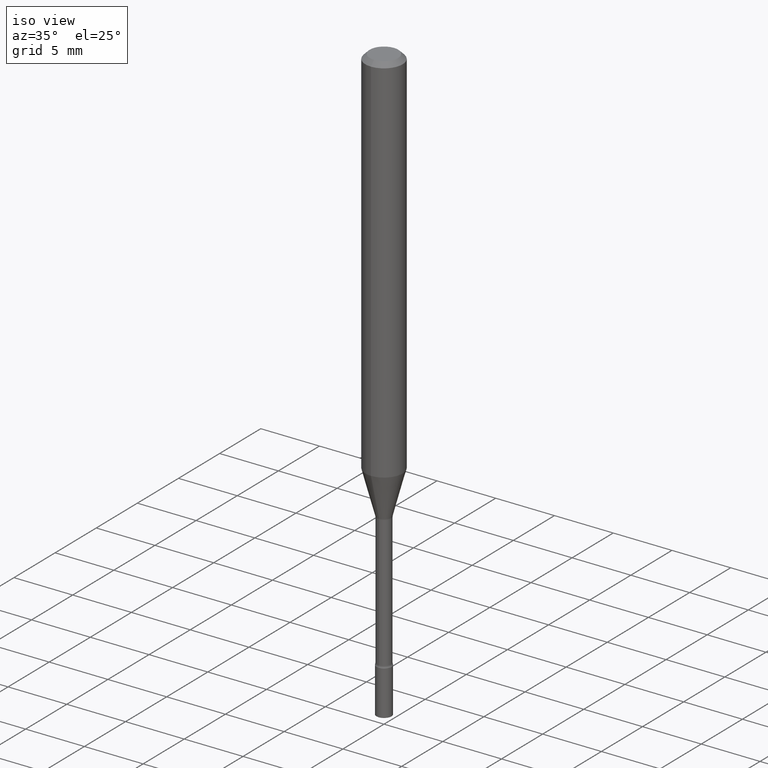
[diagram: clean part render]
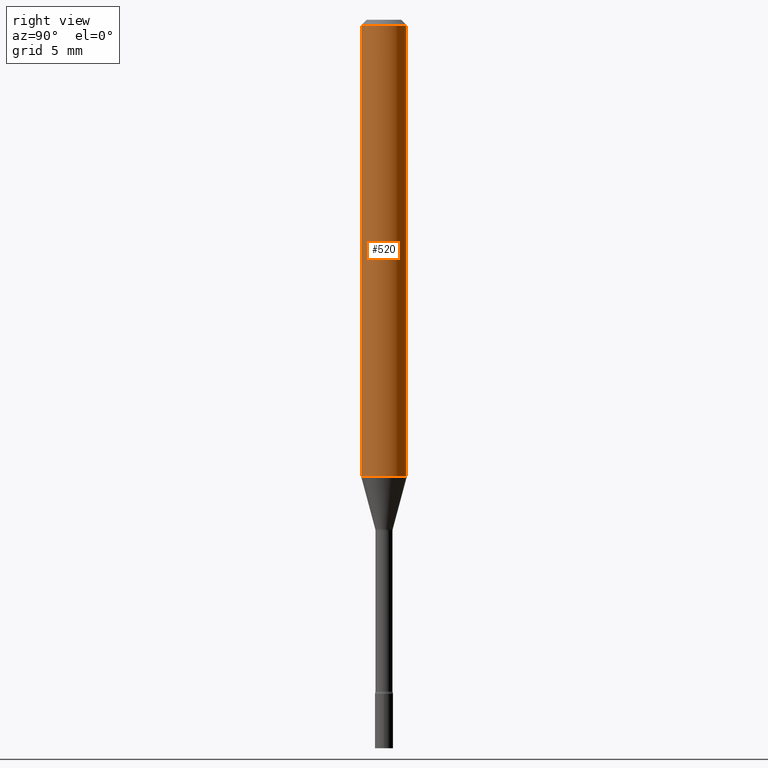
[diagram: tour spotlight — one face highlighted and labeled with its STEP entity id]
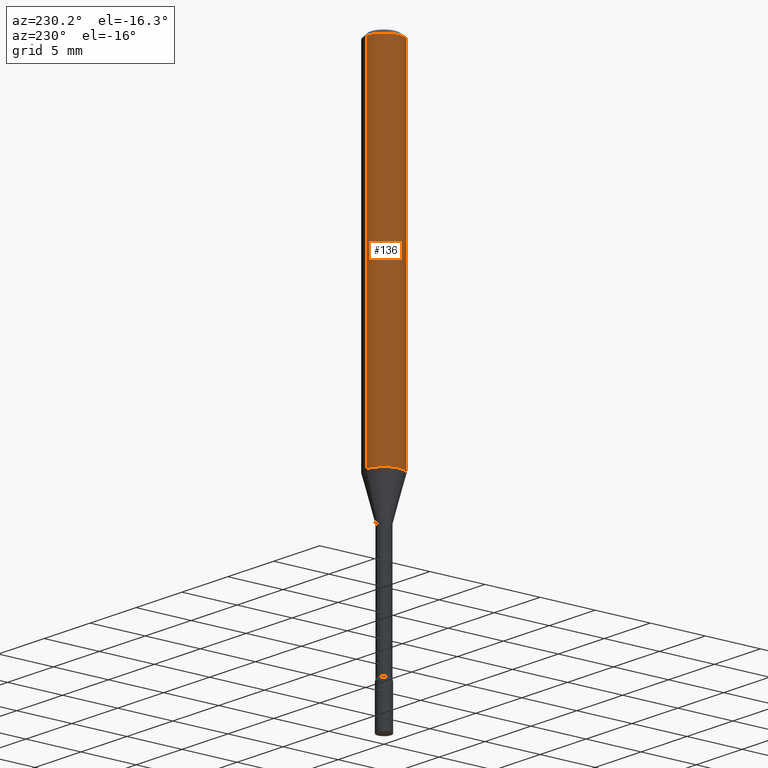
[diagram: tour spotlight — one face highlighted and labeled with its STEP entity id]
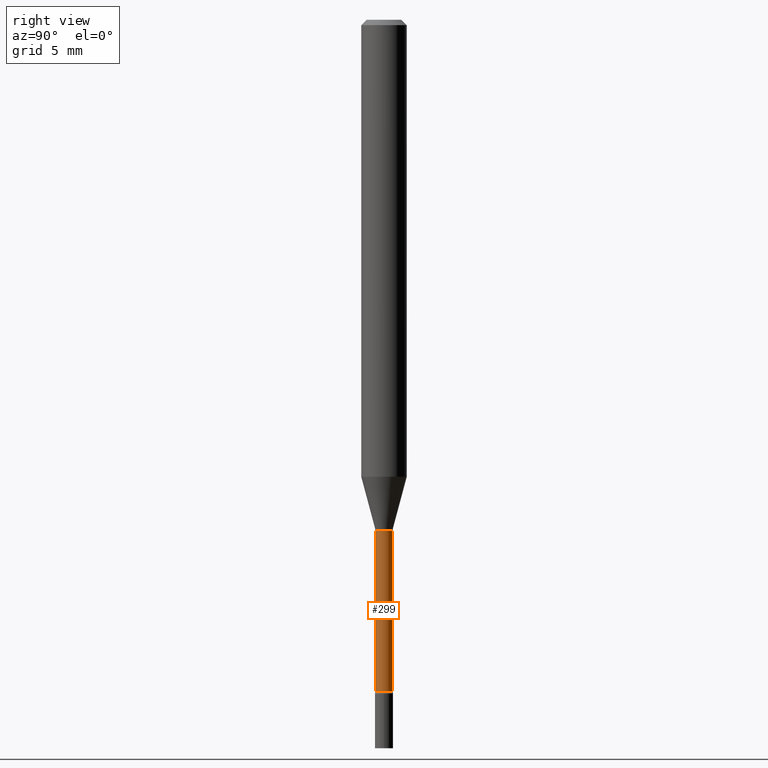
[diagram: tour spotlight — one face highlighted and labeled with its STEP entity id]
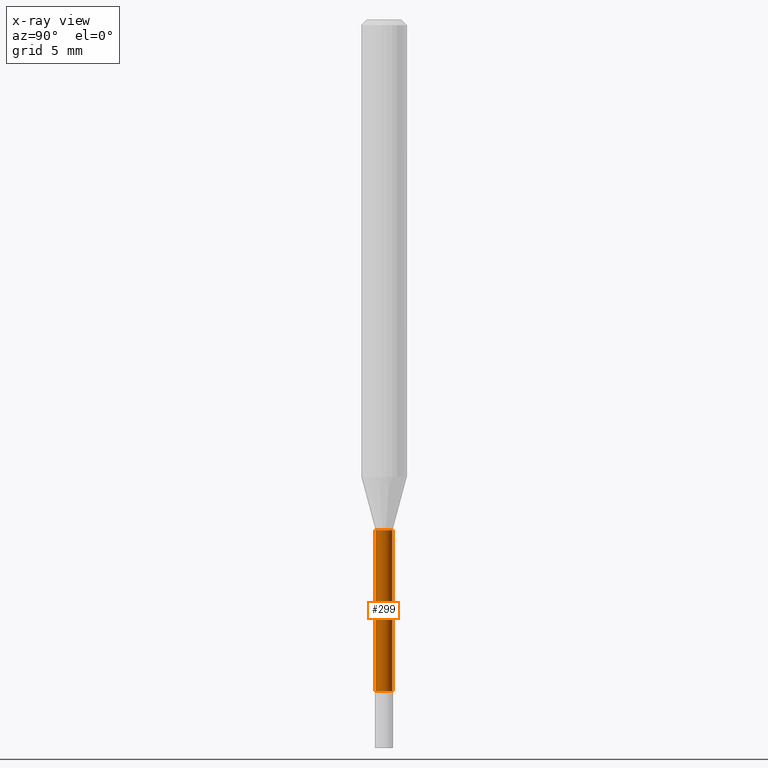
[diagram: x-ray of the same camera — body ghosted, this tour face saturated]
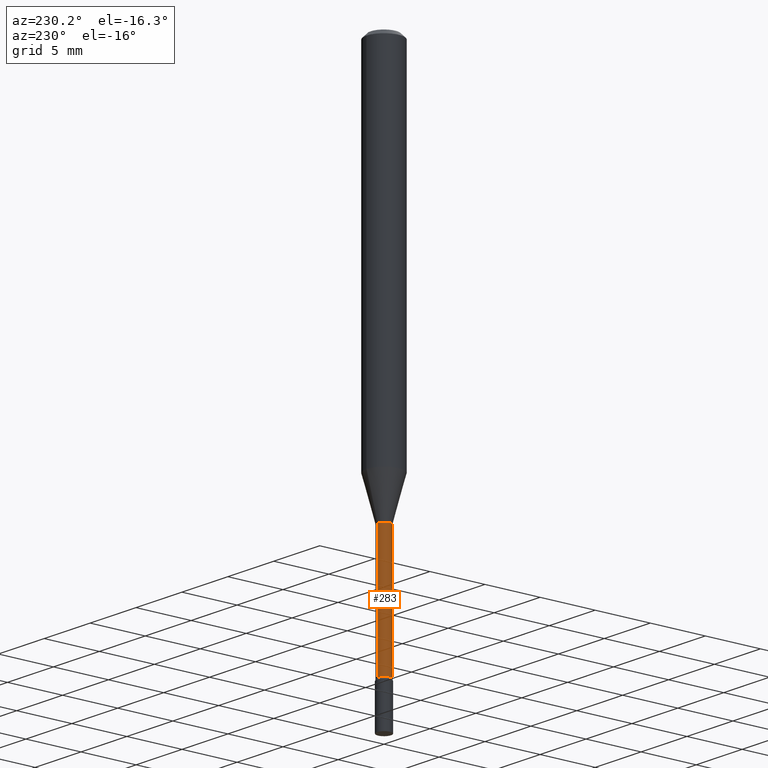
[diagram: tour spotlight — one face highlighted and labeled with its STEP entity id]
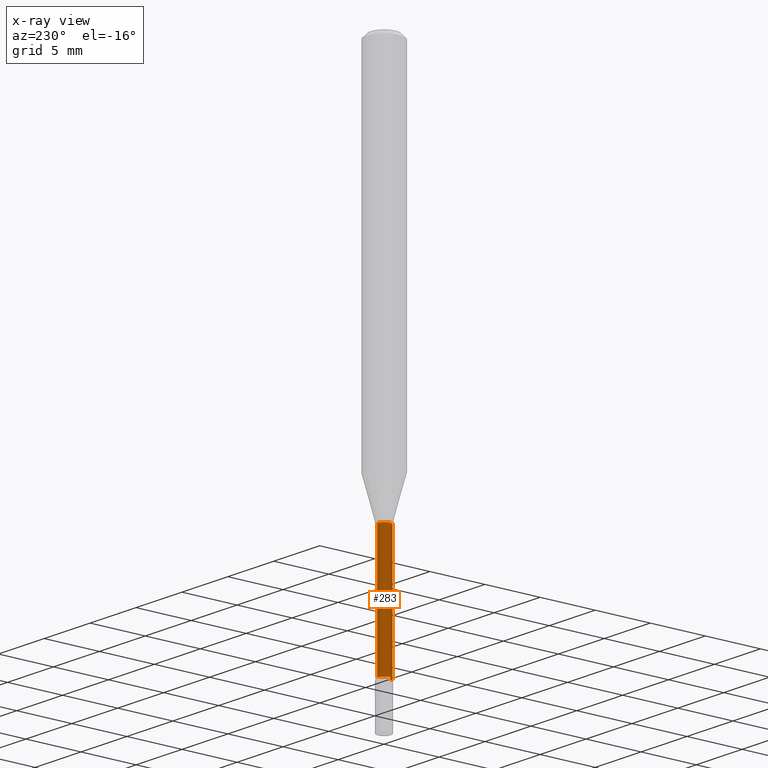
[diagram: x-ray of the same camera — body ghosted, this tour face saturated]
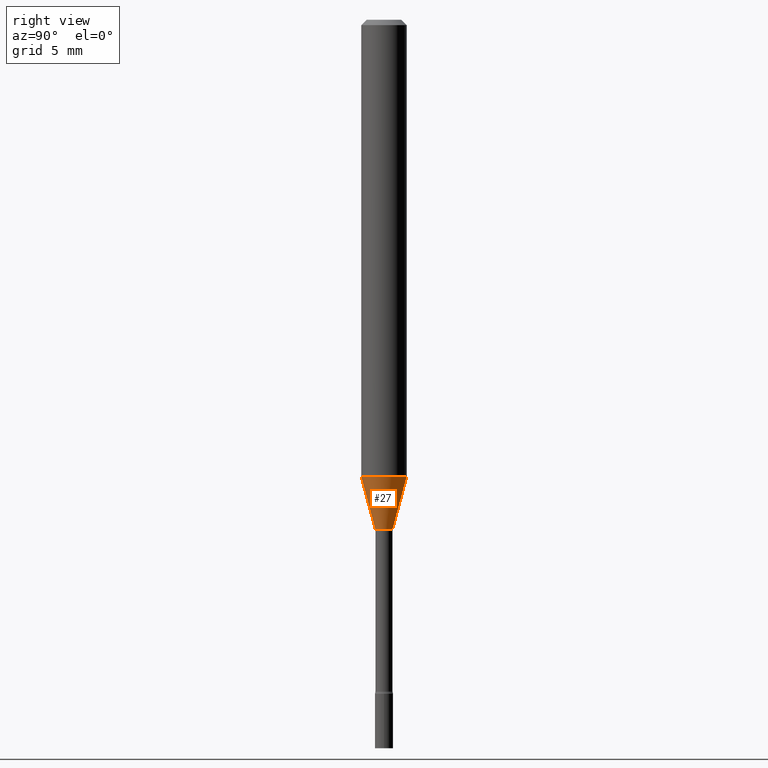
[diagram: tour spotlight — one face highlighted and labeled with its STEP entity id]
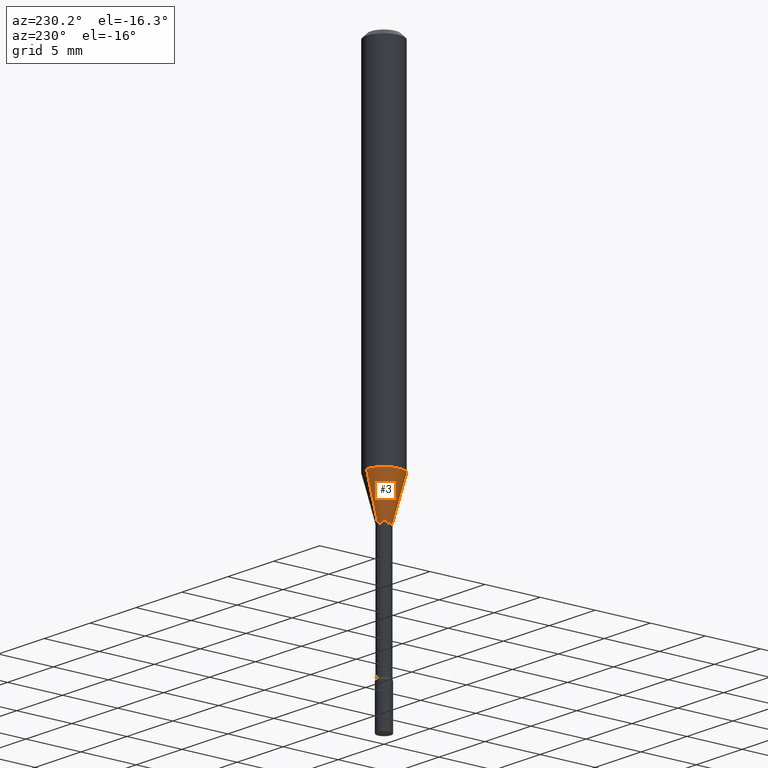
[diagram: tour spotlight — one face highlighted and labeled with its STEP entity id]
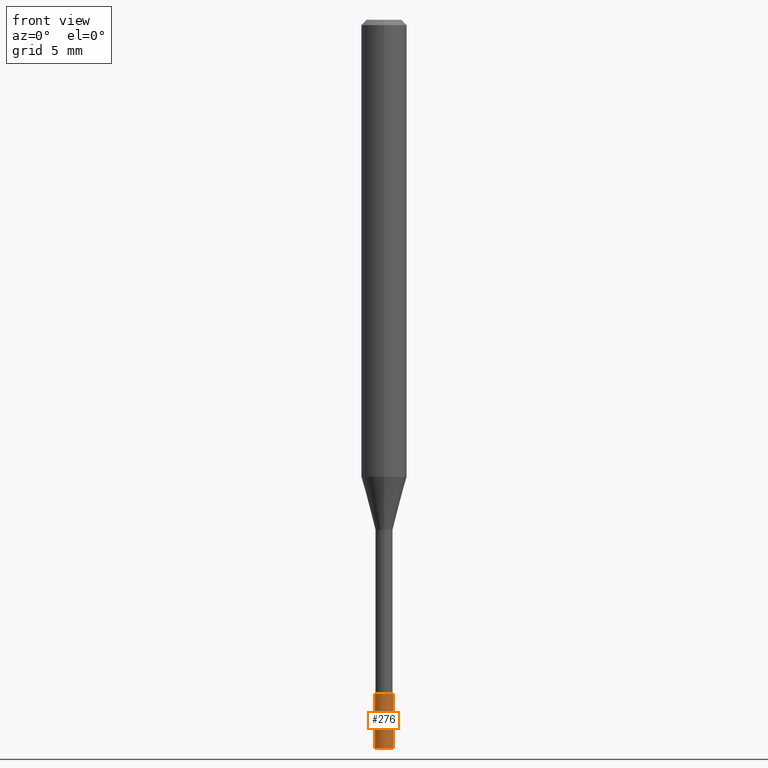
[diagram: tour spotlight — one face highlighted and labeled with its STEP entity id]
A machine part: a face-by-face anatomy tour. The part has 18 B-rep faces; the first image is the clean iso view, then the 7 largest visible faces are spotlighted one at a time (largest first), each with its STEP entity span.

Face 1 — right view, entity #520. In plain terms, the highlighted cylindrical surface (edge-blend (fillet) strip) has radius 1.5875 mm, axis along (-0, 0, 1).
Definition (entity closure, byte-faithful):
#10 = EDGE_CURVE ( 'NONE', #465, #247, #235, .T. ) ;
#15 = CIRCLE ( 'NONE', #324, 0.06250000000000000000 ) ;
#21 = AXIS2_PLACEMENT_3D ( 'NONE', #240, #403, #184 ) ;
#24 = CARTESIAN_POINT ( 'NONE',  ( 3.668272747996743464E-31, -5.237122424861178966E-17, -0.01500000000000003067 ) ) ;
#26 = CARTESIAN_POINT ( 'NONE',  ( 4.440892098500625669E-16, 0.06250000000000000000, -2.182134343692153054E-16 ) ) ;
#64 = VERTEX_POINT ( 'NONE', #358 ) ;
#66 = DIRECTION ( 'NONE',  ( -2.445515165331157393E-29, 3.491414949907445282E-15, 1.000000000000000000 ) ) ;
#67 = ORIENTED_EDGE ( 'NONE', *, *, #509, .T. ) ;
#77 = DIRECTION ( 'NONE',  ( -6.982962677686265922E-15, -1.000000000000000000, 4.370956789862821150E-15 ) ) ;
#113 = VERTEX_POINT ( 'NONE', #243 ) ;
#138 = DIRECTION ( 'NONE',  ( -6.982962677686265922E-15, -1.000000000000000000, 3.483106191921935554E-15 ) ) ;
#139 = ORIENTED_EDGE ( 'NONE', *, *, #10, .T. ) ;
#148 = EDGE_LOOP ( 'NONE', ( #67, #139, #264, #510 ) ) ;
#162 = VECTOR ( 'NONE', #362, 39.37007874015748143 ) ;
#169 = CIRCLE ( 'NONE', #250, 0.06250000000000000000 ) ;
#184 = DIRECTION ( 'NONE',  ( -6.982962677686265922E-15, -1.000000000000000000, 3.491414949907444887E-15 ) ) ;
#197 = VECTOR ( 'NONE', #224, 39.37007874015748143 ) ;
#198 = CARTESIAN_POINT ( 'NONE',  ( 3.067776544403474457E-29, -4.379805548519381130E-15, -1.254450018504814413 ) ) ;
#215 = EDGE_CURVE ( 'NONE', #113, #64, #342, .T. ) ;
#224 = DIRECTION ( 'NONE',  ( -2.445515165331157393E-29, 3.491414949907444887E-15, 1.000000000000000000 ) ) ;
#235 = LINE ( 'NONE', #26, #197 ) ;
#240 = CARTESIAN_POINT ( 'NONE',  ( 0.000000000000000000, 0.000000000000000000, 0.000000000000000000 ) ) ;
#243 = CARTESIAN_POINT ( 'NONE',  ( -4.364351673553610517E-16, -0.06250000000000439926, -1.254450018504814190 ) ) ;
#247 = VERTEX_POINT ( 'NONE', #368 ) ;
#250 = AXIS2_PLACEMENT_3D ( 'NONE', #198, #280, #77 ) ;
#264 = ORIENTED_EDGE ( 'NONE', *, *, #433, .F. ) ;
#280 = DIRECTION ( 'NONE',  ( -2.445515165331157393E-29, 3.491414949907445282E-15, 1.000000000000000000 ) ) ;
#298 = CARTESIAN_POINT ( 'NONE',  ( 4.440892098500930859E-16, 0.06249999999999559380, -1.254450018504814635 ) ) ;
#324 = AXIS2_PLACEMENT_3D ( 'NONE', #24, #66, #138 ) ;
#342 = LINE ( 'NONE', #511, #162 ) ;
#358 = CARTESIAN_POINT ( 'NONE',  ( -4.364351673553912750E-16, -0.06250000000000005551, -0.01499999999999981209 ) ) ;
#361 = FACE_OUTER_BOUND ( 'NONE', #148, .T. ) ;
#362 = DIRECTION ( 'NONE',  ( -2.445515165331157393E-29, 3.491414949907444887E-15, 1.000000000000000000 ) ) ;
#368 = CARTESIAN_POINT ( 'NONE',  ( 4.440892098500934804E-16, 0.06249999999999995143, -0.01500000000000024751 ) ) ;
#393 = CYLINDRICAL_SURFACE ( 'NONE', #21, 0.06250000000000000000 ) ;
#403 = DIRECTION ( 'NONE',  ( -2.445515165331157393E-29, 3.491414949907445282E-15, 1.000000000000000000 ) ) ;
#433 = EDGE_CURVE ( 'NONE', #64, #247, #15, .T. ) ;
#465 = VERTEX_POINT ( 'NONE', #298 ) ;
#509 = EDGE_CURVE ( 'NONE', #113, #465, #169, .T. ) ;
#510 = ORIENTED_EDGE ( 'NONE', *, *, #215, .F. ) ;
#511 = CARTESIAN_POINT ( 'NONE',  ( -4.364351673553916201E-16, -0.06250000000000000000, 2.182134343692153054E-16 ) ) ;
#520 = ADVANCED_FACE ( 'NONE', ( #361 ), #393, .T. ) ;

Face 2 — auxiliary view, entity #136. In plain terms, the highlighted cylindrical surface (edge-blend (fillet) strip) has radius 1.5875 mm, axis along (-0, 0, 1).
Definition (entity closure, byte-faithful):
#10 = EDGE_CURVE ( 'NONE', #465, #247, #235, .T. ) ;
#26 = CARTESIAN_POINT ( 'NONE',  ( 4.440892098500625669E-16, 0.06250000000000000000, -2.182134343692153054E-16 ) ) ;
#29 = EDGE_LOOP ( 'NONE', ( #144, #195, #46, #472 ) ) ;
#46 = ORIENTED_EDGE ( 'NONE', *, *, #215, .T. ) ;
#64 = VERTEX_POINT ( 'NONE', #358 ) ;
#65 = DIRECTION ( 'NONE',  ( -2.445515165331157393E-29, 3.491414949907445282E-15, 1.000000000000000000 ) ) ;
#83 = EDGE_CURVE ( 'NONE', #465, #113, #286, .T. ) ;
#95 = AXIS2_PLACEMENT_3D ( 'NONE', #363, #408, #161 ) ;
#113 = VERTEX_POINT ( 'NONE', #243 ) ;
#117 = DIRECTION ( 'NONE',  ( -6.982962677686265922E-15, -1.000000000000000000, 3.491414949907444887E-15 ) ) ;
#118 = CYLINDRICAL_SURFACE ( 'NONE', #122, 0.06250000000000000000 ) ;
#122 = AXIS2_PLACEMENT_3D ( 'NONE', #479, #248, #117 ) ;
#136 = ADVANCED_FACE ( 'NONE', ( #448 ), #118, .T. ) ;
#144 = ORIENTED_EDGE ( 'NONE', *, *, #10, .F. ) ;
#161 = DIRECTION ( 'NONE',  ( -6.982962677686265922E-15, -1.000000000000000000, 3.483106191921935554E-15 ) ) ;
#162 = VECTOR ( 'NONE', #362, 39.37007874015748143 ) ;
#183 = EDGE_CURVE ( 'NONE', #247, #64, #353, .T. ) ;
#187 = AXIS2_PLACEMENT_3D ( 'NONE', #427, #65, #402 ) ;
#195 = ORIENTED_EDGE ( 'NONE', *, *, #83, .T. ) ;
#197 = VECTOR ( 'NONE', #224, 39.37007874015748143 ) ;
#215 = EDGE_CURVE ( 'NONE', #113, #64, #342, .T. ) ;
#224 = DIRECTION ( 'NONE',  ( -2.445515165331157393E-29, 3.491414949907444887E-15, 1.000000000000000000 ) ) ;
#235 = LINE ( 'NONE', #26, #197 ) ;
#243 = CARTESIAN_POINT ( 'NONE',  ( -4.364351673553610517E-16, -0.06250000000000439926, -1.254450018504814190 ) ) ;
#247 = VERTEX_POINT ( 'NONE', #368 ) ;
#248 = DIRECTION ( 'NONE',  ( -2.445515165331157393E-29, 3.491414949907445282E-15, 1.000000000000000000 ) ) ;
#286 = CIRCLE ( 'NONE', #187, 0.06250000000000000000 ) ;
#298 = CARTESIAN_POINT ( 'NONE',  ( 4.440892098500930859E-16, 0.06249999999999559380, -1.254450018504814635 ) ) ;
#342 = LINE ( 'NONE', #511, #162 ) ;
#353 = CIRCLE ( 'NONE', #95, 0.06250000000000000000 ) ;
#358 = CARTESIAN_POINT ( 'NONE',  ( -4.364351673553912750E-16, -0.06250000000000005551, -0.01499999999999981209 ) ) ;
#362 = DIRECTION ( 'NONE',  ( -2.445515165331157393E-29, 3.491414949907444887E-15, 1.000000000000000000 ) ) ;
#363 = CARTESIAN_POINT ( 'NONE',  ( 3.668272747996743464E-31, -5.237122424861178966E-17, -0.01500000000000003067 ) ) ;
#368 = CARTESIAN_POINT ( 'NONE',  ( 4.440892098500934804E-16, 0.06249999999999995143, -0.01500000000000024751 ) ) ;
#402 = DIRECTION ( 'NONE',  ( -6.982962677686265922E-15, -1.000000000000000000, 4.370956789862821150E-15 ) ) ;
#408 = DIRECTION ( 'NONE',  ( -2.445515165331157393E-29, 3.491414949907445282E-15, 1.000000000000000000 ) ) ;
#427 = CARTESIAN_POINT ( 'NONE',  ( 3.067776544403474457E-29, -4.379805548519381130E-15, -1.254450018504814413 ) ) ;
#448 = FACE_OUTER_BOUND ( 'NONE', #29, .T. ) ;
#465 = VERTEX_POINT ( 'NONE', #298 ) ;
#472 = ORIENTED_EDGE ( 'NONE', *, *, #183, .F. ) ;
#479 = CARTESIAN_POINT ( 'NONE',  ( 0.000000000000000000, 0.000000000000000000, 0.000000000000000000 ) ) ;
#511 = CARTESIAN_POINT ( 'NONE',  ( -4.364351673553916201E-16, -0.06250000000000000000, 2.182134343692153054E-16 ) ) ;

Face 3 — right view, entity #299. An x-ray twin of the same camera follows (body ghosted, this face saturated) — the face is partly hidden behind the body. In plain terms, the highlighted cylindrical surface (edge-blend (fillet) strip) has radius 0.5969 mm, axis along (-0, 0, 1).
Definition (entity closure, byte-faithful):
#20 = VECTOR ( 'NONE', #498, 39.37007874015748143 ) ;
#38 = DIRECTION ( 'NONE',  ( -2.445515165331157393E-29, 3.491414949907445282E-15, 1.000000000000000000 ) ) ;
#41 = VERTEX_POINT ( 'NONE', #392 ) ;
#42 = CARTESIAN_POINT ( 'NONE',  ( -1.640996229255930104E-16, -0.02350000000000489891, -1.401974787463811101 ) ) ;
#56 = CARTESIAN_POINT ( 'NONE',  ( 0.000000000000000000, 0.000000000000000000, 0.000000000000000000 ) ) ;
#63 = CYLINDRICAL_SURFACE ( 'NONE', #322, 0.02350000000000003475 ) ;
#75 = LINE ( 'NONE', #112, #137 ) ;
#79 = ORIENTED_EDGE ( 'NONE', *, *, #102, .F. ) ;
#84 = FACE_OUTER_BOUND ( 'NONE', #391, .T. ) ;
#102 = EDGE_CURVE ( 'NONE', #158, #390, #321, .T. ) ;
#112 = CARTESIAN_POINT ( 'NONE',  ( -1.640996229256275231E-16, -0.02350000000000003475, 8.204825132282509112E-17 ) ) ;
#114 = AXIS2_PLACEMENT_3D ( 'NONE', #120, #293, #374 ) ;
#120 = CARTESIAN_POINT ( 'NONE',  ( 4.508213425656779262E-29, -6.436289569923853216E-15, -1.843461651584689109 ) ) ;
#137 = VECTOR ( 'NONE', #157, 39.37007874015748143 ) ;
#157 = DIRECTION ( 'NONE',  ( -2.445515165331157393E-29, 3.491414949907444887E-15, 1.000000000000000000 ) ) ;
#158 = VERTEX_POINT ( 'NONE', #42 ) ;
#173 = DIRECTION ( 'NONE',  ( -2.445515165331157393E-29, 3.491414949907445282E-15, 1.000000000000000000 ) ) ;
#199 = CARTESIAN_POINT ( 'NONE',  ( 3.428550604154676765E-29, -4.894875732344463404E-15, -1.401974787463811101 ) ) ;
#203 = DIRECTION ( 'NONE',  ( -6.982962677686265922E-15, -1.000000000000000000, 0.000000000000000000 ) ) ;
#213 = LINE ( 'NONE', #343, #20 ) ;
#225 = EDGE_CURVE ( 'NONE', #231, #41, #344, .T. ) ;
#231 = VERTEX_POINT ( 'NONE', #252 ) ;
#252 = CARTESIAN_POINT ( 'NONE',  ( -1.640996229255826813E-16, -0.02350000000000651221, -1.843461651584689109 ) ) ;
#293 = DIRECTION ( 'NONE',  ( -2.445515165331157393E-29, 3.491414949907445282E-15, 1.000000000000000000 ) ) ;
#299 = ADVANCED_FACE ( 'NONE', ( #84 ), #63, .T. ) ;
#300 = AXIS2_PLACEMENT_3D ( 'NONE', #199, #38, #203 ) ;
#306 = DIRECTION ( 'NONE',  ( -6.982962677686267499E-15, -1.000000000000000000, 3.491414949907445676E-15 ) ) ;
#321 = CIRCLE ( 'NONE', #300, 0.02350000000000000352 ) ;
#322 = AXIS2_PLACEMENT_3D ( 'NONE', #56, #173, #306 ) ;
#343 = CARTESIAN_POINT ( 'NONE',  ( 1.669775429036237659E-16, 0.02350000000000003475, -8.204825132282509112E-17 ) ) ;
#344 = CIRCLE ( 'NONE', #114, 0.02350000000000007291 ) ;
#350 = ORIENTED_EDGE ( 'NONE', *, *, #494, .F. ) ;
#374 = DIRECTION ( 'NONE',  ( -6.982962677686266711E-15, -1.000000000000000000, 0.000000000000000000 ) ) ;
#379 = CARTESIAN_POINT ( 'NONE',  ( 1.669775429036688050E-16, 0.02349999999999510467, -1.401974787463811101 ) ) ;
#390 = VERTEX_POINT ( 'NONE', #379 ) ;
#391 = EDGE_LOOP ( 'NONE', ( #412, #436, #79, #350 ) ) ;
#392 = CARTESIAN_POINT ( 'NONE',  ( 1.723066134218696351E-16, 0.02349999999999363709, -1.843461651584689109 ) ) ;
#412 = ORIENTED_EDGE ( 'NONE', *, *, #225, .T. ) ;
#436 = ORIENTED_EDGE ( 'NONE', *, *, #474, .T. ) ;
#474 = EDGE_CURVE ( 'NONE', #41, #390, #213, .T. ) ;
#494 = EDGE_CURVE ( 'NONE', #231, #158, #75, .T. ) ;
#498 = DIRECTION ( 'NONE',  ( -2.445515165331157393E-29, 3.491414949907444887E-15, 1.000000000000000000 ) ) ;

Face 4 — auxiliary view, entity #283. An x-ray twin of the same camera follows (body ghosted, this face saturated) — the face is partly hidden behind the body. In plain terms, the highlighted cylindrical surface (edge-blend (fillet) strip) has radius 0.5969 mm, axis along (-0, 0, 1).
Definition (entity closure, byte-faithful):
#20 = VECTOR ( 'NONE', #498, 39.37007874015748143 ) ;
#41 = VERTEX_POINT ( 'NONE', #392 ) ;
#42 = CARTESIAN_POINT ( 'NONE',  ( -1.640996229255930104E-16, -0.02350000000000489891, -1.401974787463811101 ) ) ;
#48 = AXIS2_PLACEMENT_3D ( 'NONE', #380, #226, #258 ) ;
#75 = LINE ( 'NONE', #112, #137 ) ;
#112 = CARTESIAN_POINT ( 'NONE',  ( -1.640996229256275231E-16, -0.02350000000000003475, 8.204825132282509112E-17 ) ) ;
#127 = DIRECTION ( 'NONE',  ( -2.445515165331157393E-29, 3.491414949907445282E-15, 1.000000000000000000 ) ) ;
#133 = EDGE_CURVE ( 'NONE', #390, #158, #135, .T. ) ;
#135 = CIRCLE ( 'NONE', #255, 0.02350000000000000352 ) ;
#137 = VECTOR ( 'NONE', #157, 39.37007874015748143 ) ;
#155 = AXIS2_PLACEMENT_3D ( 'NONE', #340, #288, #453 ) ;
#157 = DIRECTION ( 'NONE',  ( -2.445515165331157393E-29, 3.491414949907444887E-15, 1.000000000000000000 ) ) ;
#158 = VERTEX_POINT ( 'NONE', #42 ) ;
#168 = FACE_OUTER_BOUND ( 'NONE', #193, .T. ) ;
#193 = EDGE_LOOP ( 'NONE', ( #491, #464, #352, #327 ) ) ;
#213 = LINE ( 'NONE', #343, #20 ) ;
#226 = DIRECTION ( 'NONE',  ( -2.445515165331157393E-29, 3.491414949907445282E-15, 1.000000000000000000 ) ) ;
#231 = VERTEX_POINT ( 'NONE', #252 ) ;
#252 = CARTESIAN_POINT ( 'NONE',  ( -1.640996229255826813E-16, -0.02350000000000651221, -1.843461651584689109 ) ) ;
#255 = AXIS2_PLACEMENT_3D ( 'NONE', #328, #127, #404 ) ;
#258 = DIRECTION ( 'NONE',  ( -6.982962677686266711E-15, -1.000000000000000000, 0.000000000000000000 ) ) ;
#283 = ADVANCED_FACE ( 'NONE', ( #168 ), #292, .T. ) ;
#288 = DIRECTION ( 'NONE',  ( -2.445515165331157393E-29, 3.491414949907445282E-15, 1.000000000000000000 ) ) ;
#292 = CYLINDRICAL_SURFACE ( 'NONE', #155, 0.02350000000000003475 ) ;
#325 = EDGE_CURVE ( 'NONE', #41, #231, #493, .T. ) ;
#327 = ORIENTED_EDGE ( 'NONE', *, *, #133, .F. ) ;
#328 = CARTESIAN_POINT ( 'NONE',  ( 3.428550604154676765E-29, -4.894875732344463404E-15, -1.401974787463811101 ) ) ;
#340 = CARTESIAN_POINT ( 'NONE',  ( 0.000000000000000000, 0.000000000000000000, 0.000000000000000000 ) ) ;
#343 = CARTESIAN_POINT ( 'NONE',  ( 1.669775429036237659E-16, 0.02350000000000003475, -8.204825132282509112E-17 ) ) ;
#352 = ORIENTED_EDGE ( 'NONE', *, *, #494, .T. ) ;
#379 = CARTESIAN_POINT ( 'NONE',  ( 1.669775429036688050E-16, 0.02349999999999510467, -1.401974787463811101 ) ) ;
#380 = CARTESIAN_POINT ( 'NONE',  ( 4.508213425656779262E-29, -6.436289569923853216E-15, -1.843461651584689109 ) ) ;
#390 = VERTEX_POINT ( 'NONE', #379 ) ;
#392 = CARTESIAN_POINT ( 'NONE',  ( 1.723066134218696351E-16, 0.02349999999999363709, -1.843461651584689109 ) ) ;
#404 = DIRECTION ( 'NONE',  ( -6.982962677686265922E-15, -1.000000000000000000, 0.000000000000000000 ) ) ;
#453 = DIRECTION ( 'NONE',  ( -6.982962677686267499E-15, -1.000000000000000000, 3.491414949907445676E-15 ) ) ;
#464 = ORIENTED_EDGE ( 'NONE', *, *, #325, .T. ) ;
#474 = EDGE_CURVE ( 'NONE', #41, #390, #213, .T. ) ;
#491 = ORIENTED_EDGE ( 'NONE', *, *, #474, .F. ) ;
#493 = CIRCLE ( 'NONE', #48, 0.02350000000000007291 ) ;
#494 = EDGE_CURVE ( 'NONE', #231, #158, #75, .T. ) ;
#498 = DIRECTION ( 'NONE',  ( -2.445515165331157393E-29, 3.491414949907444887E-15, 1.000000000000000000 ) ) ;

Face 5 — right view, entity #27. In plain terms, the highlighted conical surface has half-angle 15 deg.
Definition (entity closure, byte-faithful):
#14 = VECTOR ( 'NONE', #150, 39.37007874015748143 ) ;
#16 = EDGE_CURVE ( 'NONE', #103, #420, #492, .T. ) ;
#23 = DIRECTION ( 'NONE',  ( -2.445515165331157393E-29, 3.491414949907445282E-15, 1.000000000000000000 ) ) ;
#27 = ADVANCED_FACE ( 'NONE', ( #152 ), #145, .T. ) ;
#33 = DIRECTION ( 'NONE',  ( -6.982962677686265133E-15, -1.000000000000000000, 0.000000000000000000 ) ) ;
#57 = ORIENTED_EDGE ( 'NONE', *, *, #16, .T. ) ;
#77 = DIRECTION ( 'NONE',  ( -6.982962677686265922E-15, -1.000000000000000000, 4.370956789862821150E-15 ) ) ;
#81 = EDGE_CURVE ( 'NONE', #420, #465, #505, .T. ) ;
#86 = ORIENTED_EDGE ( 'NONE', *, *, #233, .F. ) ;
#94 = LINE ( 'NONE', #495, #409 ) ;
#103 = VERTEX_POINT ( 'NONE', #166 ) ;
#110 = CARTESIAN_POINT ( 'NONE',  ( 3.419056415656554826E-29, -4.881321062093587157E-15, -1.398092501787273179 ) ) ;
#113 = VERTEX_POINT ( 'NONE', #243 ) ;
#142 = CARTESIAN_POINT ( 'NONE',  ( 1.706092163947573256E-16, 0.02401111260565910385, -1.398092501787273179 ) ) ;
#145 = CONICAL_SURFACE ( 'NONE', #475, 0.02401111260566398883, 0.2617993877991502960 ) ;
#150 = DIRECTION ( 'NONE',  ( 1.839019923739600710E-15, 0.2588190451025250138, 0.9659258262890670910 ) ) ;
#152 = FACE_OUTER_BOUND ( 'NONE', #452, .T. ) ;
#154 = DIRECTION ( 'NONE',  ( -2.445515165331157393E-29, 3.491414949907445282E-15, 1.000000000000000000 ) ) ;
#166 = CARTESIAN_POINT ( 'NONE',  ( -1.676687031750396736E-16, -0.02401111260566887035, -1.398092501787273179 ) ) ;
#169 = CIRCLE ( 'NONE', #250, 0.06250000000000000000 ) ;
#181 = CARTESIAN_POINT ( 'NONE',  ( 3.419056415656554826E-29, -4.881321062093587157E-15, -1.398092501787273179 ) ) ;
#198 = CARTESIAN_POINT ( 'NONE',  ( 3.067776544403474457E-29, -4.379805548519381130E-15, -1.254450018504814413 ) ) ;
#233 = EDGE_CURVE ( 'NONE', #103, #113, #94, .T. ) ;
#243 = CARTESIAN_POINT ( 'NONE',  ( -4.364351673553610517E-16, -0.06250000000000439926, -1.254450018504814190 ) ) ;
#250 = AXIS2_PLACEMENT_3D ( 'NONE', #198, #280, #77 ) ;
#261 = DIRECTION ( 'NONE',  ( -6.982962677686265133E-15, -1.000000000000000000, 0.000000000000000000 ) ) ;
#273 = ORIENTED_EDGE ( 'NONE', *, *, #81, .T. ) ;
#280 = DIRECTION ( 'NONE',  ( -2.445515165331157393E-29, 3.491414949907445282E-15, 1.000000000000000000 ) ) ;
#298 = CARTESIAN_POINT ( 'NONE',  ( 4.440892098500930859E-16, 0.06249999999999559380, -1.254450018504814635 ) ) ;
#335 = DIRECTION ( 'NONE',  ( -1.807323732225330534E-15, -0.2588190451025182415, 0.9659258262890689783 ) ) ;
#400 = ORIENTED_EDGE ( 'NONE', *, *, #509, .F. ) ;
#409 = VECTOR ( 'NONE', #335, 39.37007874015748143 ) ;
#420 = VERTEX_POINT ( 'NONE', #496 ) ;
#452 = EDGE_LOOP ( 'NONE', ( #57, #273, #400, #86 ) ) ;
#465 = VERTEX_POINT ( 'NONE', #298 ) ;
#466 = AXIS2_PLACEMENT_3D ( 'NONE', #110, #154, #33 ) ;
#475 = AXIS2_PLACEMENT_3D ( 'NONE', #181, #23, #261 ) ;
#492 = CIRCLE ( 'NONE', #466, 0.02401111260566398883 ) ;
#495 = CARTESIAN_POINT ( 'NONE',  ( -1.676687031750396736E-16, -0.02401111260566887035, -1.398092501787273179 ) ) ;
#496 = CARTESIAN_POINT ( 'NONE',  ( 3.073492131224253537E-16, 0.02401111260565910385, -1.398092501787273179 ) ) ;
#505 = LINE ( 'NONE', #142, #14 ) ;
#509 = EDGE_CURVE ( 'NONE', #113, #465, #169, .T. ) ;

Face 6 — auxiliary view, entity #3. In plain terms, the highlighted conical surface has half-angle 15 deg.
Definition (entity closure, byte-faithful):
#3 = ADVANCED_FACE ( 'NONE', ( #314 ), #376, .T. ) ;
#14 = VECTOR ( 'NONE', #150, 39.37007874015748143 ) ;
#30 = ORIENTED_EDGE ( 'NONE', *, *, #470, .T. ) ;
#54 = DIRECTION ( 'NONE',  ( -6.982962677686265133E-15, -1.000000000000000000, 0.000000000000000000 ) ) ;
#65 = DIRECTION ( 'NONE',  ( -2.445515165331157393E-29, 3.491414949907445282E-15, 1.000000000000000000 ) ) ;
#70 = ORIENTED_EDGE ( 'NONE', *, *, #233, .T. ) ;
#81 = EDGE_CURVE ( 'NONE', #420, #465, #505, .T. ) ;
#83 = EDGE_CURVE ( 'NONE', #465, #113, #286, .T. ) ;
#94 = LINE ( 'NONE', #495, #409 ) ;
#103 = VERTEX_POINT ( 'NONE', #166 ) ;
#113 = VERTEX_POINT ( 'NONE', #243 ) ;
#140 = DIRECTION ( 'NONE',  ( -2.445515165331157393E-29, 3.491414949907445282E-15, 1.000000000000000000 ) ) ;
#142 = CARTESIAN_POINT ( 'NONE',  ( 1.706092163947573256E-16, 0.02401111260565910385, -1.398092501787273179 ) ) ;
#150 = DIRECTION ( 'NONE',  ( 1.839019923739600710E-15, 0.2588190451025250138, 0.9659258262890670910 ) ) ;
#166 = CARTESIAN_POINT ( 'NONE',  ( -1.676687031750396736E-16, -0.02401111260566887035, -1.398092501787273179 ) ) ;
#187 = AXIS2_PLACEMENT_3D ( 'NONE', #427, #65, #402 ) ;
#219 = DIRECTION ( 'NONE',  ( -2.445515165331157393E-29, 3.491414949907445282E-15, 1.000000000000000000 ) ) ;
#233 = EDGE_CURVE ( 'NONE', #103, #113, #94, .T. ) ;
#241 = ORIENTED_EDGE ( 'NONE', *, *, #83, .F. ) ;
#243 = CARTESIAN_POINT ( 'NONE',  ( -4.364351673553610517E-16, -0.06250000000000439926, -1.254450018504814190 ) ) ;
#286 = CIRCLE ( 'NONE', #187, 0.06250000000000000000 ) ;
#298 = CARTESIAN_POINT ( 'NONE',  ( 4.440892098500930859E-16, 0.06249999999999559380, -1.254450018504814635 ) ) ;
#302 = AXIS2_PLACEMENT_3D ( 'NONE', #504, #140, #54 ) ;
#314 = FACE_OUTER_BOUND ( 'NONE', #441, .T. ) ;
#335 = DIRECTION ( 'NONE',  ( -1.807323732225330534E-15, -0.2588190451025182415, 0.9659258262890689783 ) ) ;
#337 = AXIS2_PLACEMENT_3D ( 'NONE', #514, #219, #430 ) ;
#364 = ORIENTED_EDGE ( 'NONE', *, *, #81, .F. ) ;
#376 = CONICAL_SURFACE ( 'NONE', #337, 0.02401111260566398883, 0.2617993877991502960 ) ;
#401 = CIRCLE ( 'NONE', #302, 0.02401111260566398883 ) ;
#402 = DIRECTION ( 'NONE',  ( -6.982962677686265922E-15, -1.000000000000000000, 4.370956789862821150E-15 ) ) ;
#409 = VECTOR ( 'NONE', #335, 39.37007874015748143 ) ;
#420 = VERTEX_POINT ( 'NONE', #496 ) ;
#427 = CARTESIAN_POINT ( 'NONE',  ( 3.067776544403474457E-29, -4.379805548519381130E-15, -1.254450018504814413 ) ) ;
#430 = DIRECTION ( 'NONE',  ( -6.982962677686265133E-15, -1.000000000000000000, 0.000000000000000000 ) ) ;
#441 = EDGE_LOOP ( 'NONE', ( #364, #30, #70, #241 ) ) ;
#465 = VERTEX_POINT ( 'NONE', #298 ) ;
#470 = EDGE_CURVE ( 'NONE', #420, #103, #401, .T. ) ;
#495 = CARTESIAN_POINT ( 'NONE',  ( -1.676687031750396736E-16, -0.02401111260566887035, -1.398092501787273179 ) ) ;
#496 = CARTESIAN_POINT ( 'NONE',  ( 3.073492131224253537E-16, 0.02401111260565910385, -1.398092501787273179 ) ) ;
#504 = CARTESIAN_POINT ( 'NONE',  ( 3.419056415656554826E-29, -4.881321062093587157E-15, -1.398092501787273179 ) ) ;
#505 = LINE ( 'NONE', #142, #14 ) ;
#514 = CARTESIAN_POINT ( 'NONE',  ( 3.419056415656554826E-29, -4.881321062093587157E-15, -1.398092501787273179 ) ) ;

Face 7 — front view, entity #276. In plain terms, the highlighted cylindrical surface (edge-blend (fillet) strip) has radius 0.635 mm, axis along (-0, 0, 1).
Definition (entity closure, byte-faithful):
#12 = DIRECTION ( 'NONE',  ( 1.000000000000000000, -6.982962677686267499E-15, 4.876176775795936353E-29 ) ) ;
#17 = CARTESIAN_POINT ( 'NONE',  ( -0.02500000000000000139, 1.776356839400250563E-16, -1.229733772563726656E-30 ) ) ;
#19 = AXIS2_PLACEMENT_3D ( 'NONE', #131, #125, #12 ) ;
#32 = VERTEX_POINT ( 'NONE', #507 ) ;
#87 = FACE_OUTER_BOUND ( 'NONE', #270, .T. ) ;
#108 = ORIENTED_EDGE ( 'NONE', *, *, #415, .F. ) ;
#125 = DIRECTION ( 'NONE',  ( -2.445468806185136597E-29, 3.491481338843145583E-15, 1.000000000000000000 ) ) ;
#131 = CARTESIAN_POINT ( 'NONE',  ( 0.000000000000000000, 0.000000000000000000, 0.000000000000000000 ) ) ;
#132 = CIRCLE ( 'NONE', #435, 0.02500000000000000139 ) ;
#143 = LINE ( 'NONE', #349, #517 ) ;
#149 = ORIENTED_EDGE ( 'NONE', *, *, #449, .T. ) ;
#156 = CIRCLE ( 'NONE', #354, 0.02500000000000000139 ) ;
#177 = DIRECTION ( 'NONE',  ( -2.445468806185136597E-29, 3.491481338843145583E-15, 1.000000000000000000 ) ) ;
#206 = CYLINDRICAL_SURFACE ( 'NONE', #19, 0.02500000000000000139 ) ;
#217 = VERTEX_POINT ( 'NONE', #518 ) ;
#220 = DIRECTION ( 'NONE',  ( -2.445468806185136877E-29, 3.491481338843145188E-15, 1.000000000000000000 ) ) ;
#256 = CARTESIAN_POINT ( 'NONE',  ( 4.890937612370273194E-29, -6.982962677686291165E-15, -2.000000000000000000 ) ) ;
#259 = VERTEX_POINT ( 'NONE', #297 ) ;
#260 = DIRECTION ( 'NONE',  ( -2.445468806185136597E-29, 3.491481338843145583E-15, 1.000000000000000000 ) ) ;
#262 = CARTESIAN_POINT ( 'NONE',  ( 0.02500000000000000139, -7.157536744628447044E-15, -2.000000000000000000 ) ) ;
#270 = EDGE_LOOP ( 'NONE', ( #281, #462, #149, #108 ) ) ;
#275 = VECTOR ( 'NONE', #220, 39.37007874015748143 ) ;
#276 = ADVANCED_FACE ( 'NONE', ( #87 ), #206, .T. ) ;
#281 = ORIENTED_EDGE ( 'NONE', *, *, #329, .F. ) ;
#297 = CARTESIAN_POINT ( 'NONE',  ( -0.02500000000000000139, -6.543465893333030170E-15, -1.849999999999999867 ) ) ;
#329 = EDGE_CURVE ( 'NONE', #32, #259, #389, .T. ) ;
#331 = EDGE_CURVE ( 'NONE', #32, #372, #132, .T. ) ;
#349 = CARTESIAN_POINT ( 'NONE',  ( 0.02500000000000000139, -1.745740669421566924E-16, 1.219044193948984123E-30 ) ) ;
#354 = AXIS2_PLACEMENT_3D ( 'NONE', #506, #177, #502 ) ;
#372 = VERTEX_POINT ( 'NONE', #262 ) ;
#387 = DIRECTION ( 'NONE',  ( 1.000000000000000000, -6.982962677686254878E-15, 0.000000000000000000 ) ) ;
#389 = LINE ( 'NONE', #17, #275 ) ;
#415 = EDGE_CURVE ( 'NONE', #259, #217, #156, .T. ) ;
#417 = DIRECTION ( 'NONE',  ( -2.445468806185136877E-29, 3.491481338843145188E-15, 1.000000000000000000 ) ) ;
#435 = AXIS2_PLACEMENT_3D ( 'NONE', #256, #260, #387 ) ;
#449 = EDGE_CURVE ( 'NONE', #372, #217, #143, .T. ) ;
#462 = ORIENTED_EDGE ( 'NONE', *, *, #331, .T. ) ;
#502 = DIRECTION ( 'NONE',  ( 1.000000000000000000, -6.982962677686254878E-15, 0.000000000000000000 ) ) ;
#506 = CARTESIAN_POINT ( 'NONE',  ( 4.524117291442502256E-29, -6.459240476859818795E-15, -1.849999999999999867 ) ) ;
#507 = CARTESIAN_POINT ( 'NONE',  ( -0.02500000000000000139, -6.543465893333030170E-15, -2.000000000000000000 ) ) ;
#517 = VECTOR ( 'NONE', #417, 39.37007874015748143 ) ;
#518 = CARTESIAN_POINT ( 'NONE',  ( 0.02500000000000000139, -6.633814543801975463E-15, -1.849999999999999867 ) ) ;